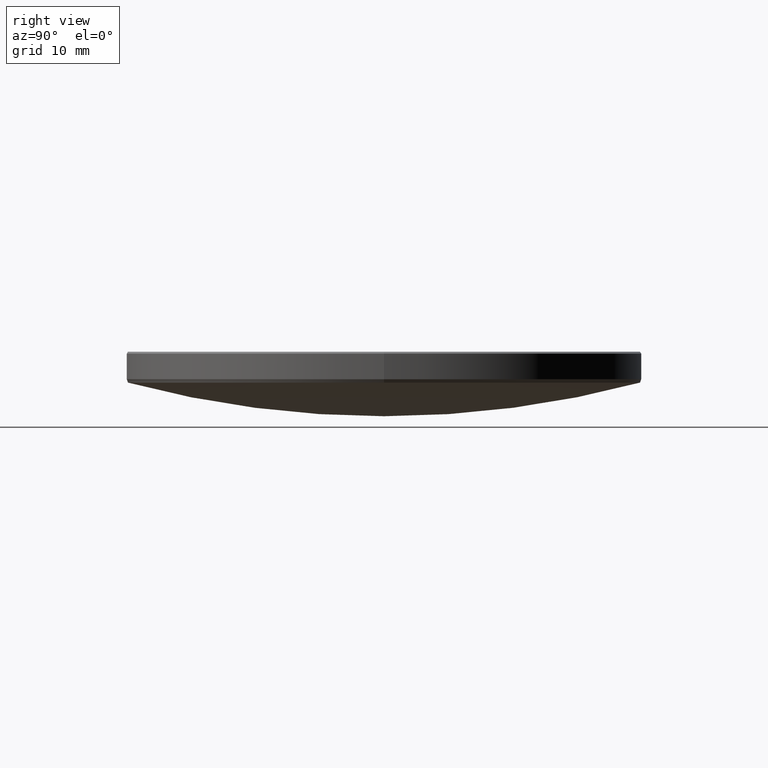
[diagram: clean part render]
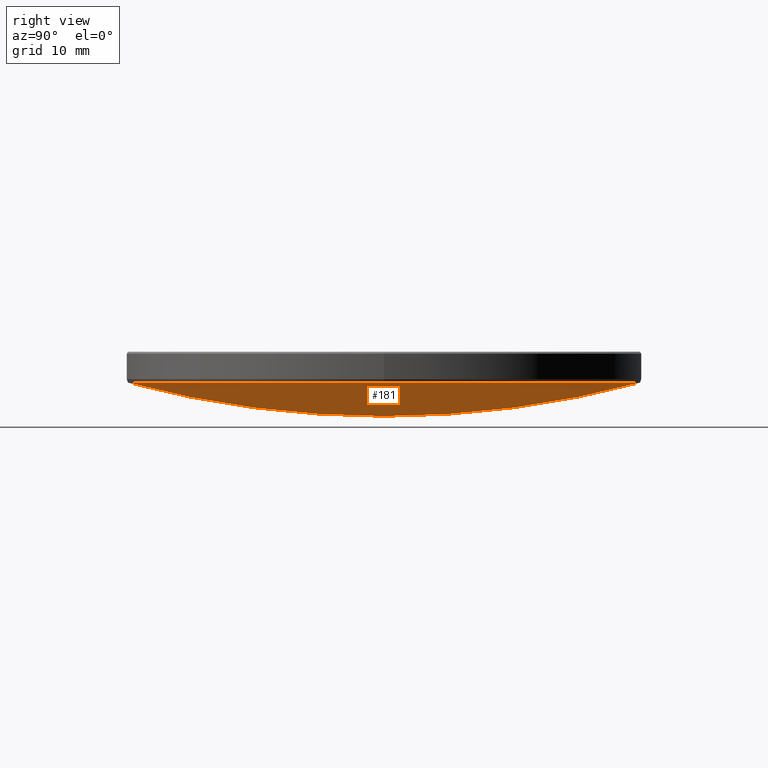
[diagram: same view with one face highlighted and labeled with its STEP entity id]
A machine part, right view. The second image highlights one B-rep face of the part: STEP entity #181.
In plain terms, the highlighted spherical surface has radius 97.61 mm.
Its self-contained STEP definition (entity closure, byte-faithful):
#15 = VERTEX_POINT ( 'NONE', #197 ) ;
#20 = CARTESIAN_POINT ( 'NONE',  ( 0.000000000000000000, 0.000000000000000000, 108.2472922687967838 ) ) ;
#39 = VERTEX_POINT ( 'NONE', #122 ) ;
#47 = EDGE_CURVE ( 'NONE', #39, #140, #114, .T. ) ;
#49 = AXIS2_PLACEMENT_3D ( 'NONE', #95, #144, #330 ) ;
#56 = ORIENTED_EDGE ( 'NONE', *, *, #71, .F. ) ;
#63 = CIRCLE ( 'NONE', #90, 25.20703431346279544 ) ;
#71 = EDGE_CURVE ( 'NONE', #143, #15, #157, .T. ) ;
#79 = DIRECTION ( 'NONE',  ( -1.000000000000000000, 0.000000000000000000, 0.000000000000000000 ) ) ;
#88 = EDGE_LOOP ( 'NONE', ( #56, #323, #178, #298 ) ) ;
#90 = AXIS2_PLACEMENT_3D ( 'NONE', #93, #304, #277 ) ;
#93 = CARTESIAN_POINT ( 'NONE',  ( 0.000000000000000000, 0.000000000000000000, 13.94820679539513009 ) ) ;
#95 = CARTESIAN_POINT ( 'NONE',  ( 0.000000000000000000, 0.000000000000000000, 108.2472922687967838 ) ) ;
#102 = CARTESIAN_POINT ( 'NONE',  ( 25.20703431346279899, 0.000000000000000000, 13.94820679539513009 ) ) ;
#114 = CIRCLE ( 'NONE', #309, 25.20703431346279544 ) ;
#117 = DIRECTION ( 'NONE',  ( -1.000000000000000000, 1.224646799147353207E-16, 0.000000000000000000 ) ) ;
#122 = CARTESIAN_POINT ( 'NONE',  ( 0.000000000000000000, 25.20703431346280965, 13.94820679539513009 ) ) ;
#124 = DIRECTION ( 'NONE',  ( 0.000000000000000000, 0.000000000000000000, -1.000000000000000000 ) ) ;
#131 = SPHERICAL_SURFACE ( 'NONE', #134, 97.61000000000001364 ) ;
#134 = AXIS2_PLACEMENT_3D ( 'NONE', #289, #79, #184 ) ;
#140 = VERTEX_POINT ( 'NONE', #102 ) ;
#143 = VERTEX_POINT ( 'NONE', #155 ) ;
#144 = DIRECTION ( 'NONE',  ( 1.000000000000000000, -0.000000000000000000, 0.000000000000000000 ) ) ;
#155 = CARTESIAN_POINT ( 'NONE',  ( 0.000000000000000000, 5.976888703238658404E-15, 10.63729226879676837 ) ) ;
#157 = CIRCLE ( 'NONE', #240, 97.61000000000001364 ) ;
#178 = ORIENTED_EDGE ( 'NONE', *, *, #47, .T. ) ;
#181 = ADVANCED_FACE ( 'NONE', ( #258 ), #131, .T. ) ;
#184 = DIRECTION ( 'NONE',  ( 0.000000000000000000, 1.000000000000000000, 0.000000000000000000 ) ) ;
#197 = CARTESIAN_POINT ( 'NONE',  ( -3.086971388797973485E-15, -25.20703431346280965, 13.94820679539513009 ) ) ;
#223 = EDGE_CURVE ( 'NONE', #143, #39, #310, .T. ) ;
#224 = DIRECTION ( 'NONE',  ( 1.000000000000000000, 0.000000000000000000, 0.000000000000000000 ) ) ;
#236 = EDGE_CURVE ( 'NONE', #140, #15, #63, .T. ) ;
#240 = AXIS2_PLACEMENT_3D ( 'NONE', #20, #117, #274 ) ;
#258 = FACE_OUTER_BOUND ( 'NONE', #88, .T. ) ;
#274 = DIRECTION ( 'NONE',  ( -1.224646799147353207E-16, -1.000000000000000000, 0.000000000000000000 ) ) ;
#277 = DIRECTION ( 'NONE',  ( 1.000000000000000000, 0.000000000000000000, 0.000000000000000000 ) ) ;
#289 = CARTESIAN_POINT ( 'NONE',  ( 0.000000000000000000, 0.000000000000000000, 108.2472922687967838 ) ) ;
#298 = ORIENTED_EDGE ( 'NONE', *, *, #236, .T. ) ;
#304 = DIRECTION ( 'NONE',  ( 0.000000000000000000, 0.000000000000000000, -1.000000000000000000 ) ) ;
#306 = CARTESIAN_POINT ( 'NONE',  ( 0.000000000000000000, 0.000000000000000000, 13.94820679539513009 ) ) ;
#309 = AXIS2_PLACEMENT_3D ( 'NONE', #306, #124, #224 ) ;
#310 = CIRCLE ( 'NONE', #49, 97.61000000000001364 ) ;
#323 = ORIENTED_EDGE ( 'NONE', *, *, #223, .T. ) ;
#330 = DIRECTION ( 'NONE',  ( 0.000000000000000000, 0.000000000000000000, -1.000000000000000000 ) ) ;